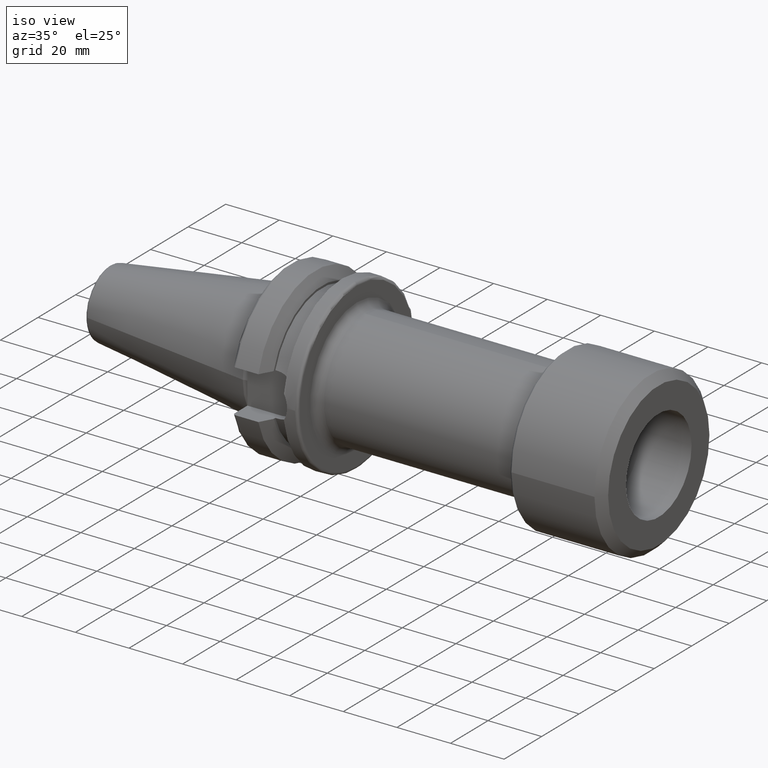
[diagram: clean part render]
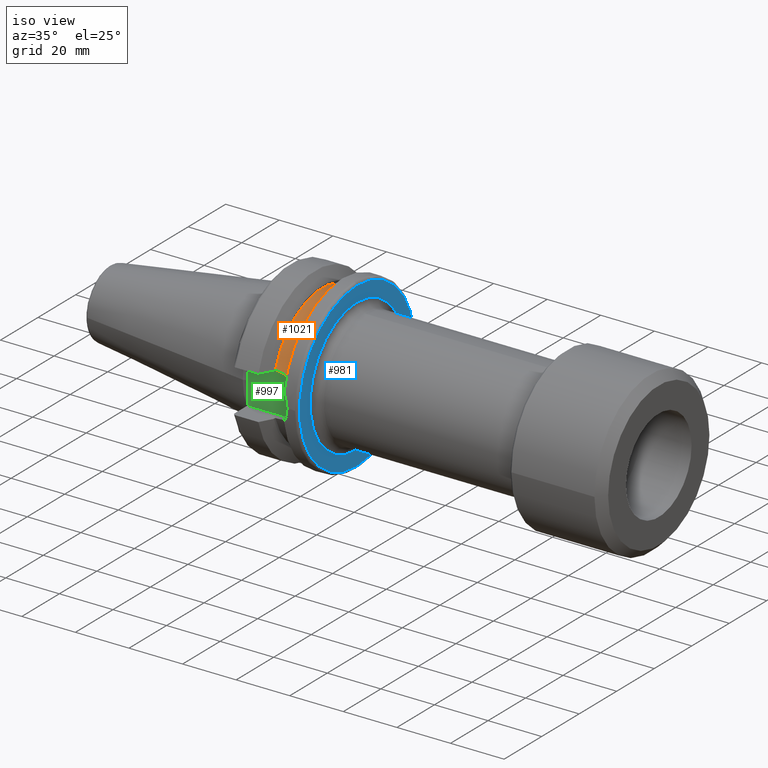
[diagram: same view with three faces highlighted in distinct colors, each labeled with its STEP entity id]
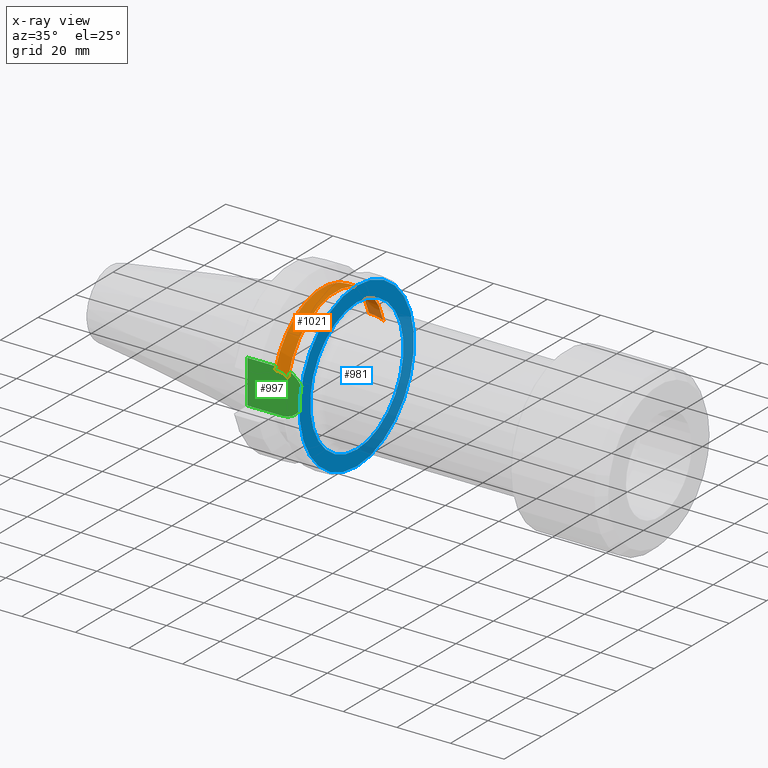
[diagram: x-ray of the same camera — body ghosted, the three highlighted faces saturated]
A machine part, iso view with three faces highlighted in distinct colors.
The next image is the same camera in x-ray (body ghosted, the three faces saturated) — at least one of them is partly hidden behind the body in this view.
Their STEP definitions:

[orange] entity #1021 — the highlighted cylindrical surface (partial cylindrical patch) has radius 26.3 mm, axis along (1, 0, 0).
#44=B_SPLINE_CURVE_WITH_KNOTS('',3,(#1708,#1709,#1710,#1711,#1712,#1713),
 .UNSPECIFIED.,.F.,.F.,(4,2,4),(0.,0.305409847287967,0.418608358539112),
 .UNSPECIFIED.);
#51=B_SPLINE_CURVE_WITH_KNOTS('',3,(#1850,#1851,#1852,#1853,#1854,#1855),
 .UNSPECIFIED.,.F.,.F.,(4,2,4),(-0.418608358539113,-0.305409847287967,0.),
 .UNSPECIFIED.);
#106=CYLINDRICAL_SURFACE('',#1212,26.3);
#157=FACE_OUTER_BOUND('',#225,.T.);
#225=EDGE_LOOP('',(#894,#895,#896,#897,#898,#899));
#263=LINE('',#1721,#317);
#282=LINE('',#1866,#336);
#317=VECTOR('',#1363,10.);
#336=VECTOR('',#1430,10.);
#408=CIRCLE('',#1211,26.3);
#409=CIRCLE('',#1213,26.3);
#459=VERTEX_POINT('',#1705);
#460=VERTEX_POINT('',#1707);
#463=VERTEX_POINT('',#1720);
#489=VERTEX_POINT('',#1847);
#490=VERTEX_POINT('',#1849);
#492=VERTEX_POINT('',#1865);
#567=EDGE_CURVE('',#460,#459,#44,.T.);
#571=EDGE_CURVE('',#463,#460,#263,.T.);
#610=EDGE_CURVE('',#490,#489,#51,.T.);
#613=EDGE_CURVE('',#489,#492,#282,.T.);
#641=EDGE_CURVE('',#492,#463,#408,.T.);
#642=EDGE_CURVE('',#490,#459,#409,.T.);
#894=ORIENTED_EDGE('',*,*,#567,.T.);
#895=ORIENTED_EDGE('',*,*,#642,.F.);
#896=ORIENTED_EDGE('',*,*,#610,.T.);
#897=ORIENTED_EDGE('',*,*,#613,.T.);
#898=ORIENTED_EDGE('',*,*,#641,.T.);
#899=ORIENTED_EDGE('',*,*,#571,.T.);
#1021=ADVANCED_FACE('',(#157),#106,.T.);
#1211=AXIS2_PLACEMENT_3D('',#1932,#1497,#1498);
#1212=AXIS2_PLACEMENT_3D('',#1933,#1499,#1500);
#1213=AXIS2_PLACEMENT_3D('',#1934,#1501,#1502);
#1363=DIRECTION('',(1.,0.,0.));
#1430=DIRECTION('',(-1.,0.,0.));
#1497=DIRECTION('center_axis',(1.,0.,0.));
#1498=DIRECTION('ref_axis',(0.,0.,-1.));
#1499=DIRECTION('center_axis',(1.,0.,0.));
#1500=DIRECTION('ref_axis',(0.,1.,0.));
#1501=DIRECTION('center_axis',(1.,0.,0.));
#1502=DIRECTION('ref_axis',(0.,0.,-1.));
#1705=CARTESIAN_POINT('',(19.1,-25.3793222919762,6.89782574439221));
#1707=CARTESIAN_POINT('',(14.95,-25.0377215417058,8.05));
#1708=CARTESIAN_POINT('Ctrl Pts',(14.95,-25.0377215417058,8.05));
#1709=CARTESIAN_POINT('Ctrl Pts',(15.9680328242932,-25.0377215417058,8.05));
#1710=CARTESIAN_POINT('Ctrl Pts',(17.0490724969254,-25.1063150193149,7.84520188991776));
#1711=CARTESIAN_POINT('Ctrl Pts',(18.4068260684762,-25.2726009715968,7.28086186600679));
#1712=CARTESIAN_POINT('Ctrl Pts',(18.7623374744972,-25.3241080721198,7.10097664045187));
#1713=CARTESIAN_POINT('Ctrl Pts',(19.1,-25.3793222919762,6.89782574439221));
#1720=CARTESIAN_POINT('',(14.1,-25.0377215417058,8.05));
#1721=CARTESIAN_POINT('',(16.6,-25.0377215417058,8.05));
#1847=CARTESIAN_POINT('',(14.95,25.0377215417058,8.05));
#1849=CARTESIAN_POINT('',(19.1,25.3793222919762,6.89782574439221));
#1850=CARTESIAN_POINT('Ctrl Pts',(19.1,25.3793222919762,6.89782574439221));
#1851=CARTESIAN_POINT('Ctrl Pts',(18.7623374744972,25.3241080721198,7.10097664045187));
#1852=CARTESIAN_POINT('Ctrl Pts',(18.4068260684762,25.2726009715968,7.28086186600679));
#1853=CARTESIAN_POINT('Ctrl Pts',(17.0490724969254,25.1063150193149,7.84520188991776));
#1854=CARTESIAN_POINT('Ctrl Pts',(15.9680328242932,25.0377215417058,8.05));
#1855=CARTESIAN_POINT('Ctrl Pts',(14.95,25.0377215417058,8.05));
#1865=CARTESIAN_POINT('',(14.1,25.0377215417058,8.05));
#1866=CARTESIAN_POINT('',(16.6,25.0377215417058,8.05));
#1932=CARTESIAN_POINT('Origin',(14.1,0.,0.));
#1933=CARTESIAN_POINT('Origin',(16.6,0.,0.));
#1934=CARTESIAN_POINT('Origin',(19.1,0.,0.));

[blue] entity #981 — the highlighted planar face has unit normal (1, 0, 0).
#62=FACE_BOUND('',#181,.T.);
#73=PLANE('',#1128);
#117=FACE_OUTER_BOUND('',#180,.T.);
#180=EDGE_LOOP('',(#692));
#181=EDGE_LOOP('',(#693));
#364=CIRCLE('',#1126,24.85);
#365=CIRCLE('',#1129,30.5);
#436=VERTEX_POINT('',#1609);
#437=VERTEX_POINT('',#1615);
#534=EDGE_CURVE('',#436,#436,#364,.T.);
#536=EDGE_CURVE('',#437,#437,#365,.T.);
#692=ORIENTED_EDGE('',*,*,#536,.T.);
#693=ORIENTED_EDGE('',*,*,#534,.F.);
#981=ADVANCED_FACE('',(#117,#62),#73,.T.);
#1126=AXIS2_PLACEMENT_3D('',#1611,#1283,#1284);
#1128=AXIS2_PLACEMENT_3D('',#1614,#1288,#1289);
#1129=AXIS2_PLACEMENT_3D('',#1616,#1290,#1291);
#1283=DIRECTION('center_axis',(1.,0.,0.));
#1284=DIRECTION('ref_axis',(0.,-1.22464679914735E-16,1.));
#1288=DIRECTION('center_axis',(1.,0.,0.));
#1289=DIRECTION('ref_axis',(0.,0.,-1.));
#1290=DIRECTION('center_axis',(1.,0.,0.));
#1291=DIRECTION('ref_axis',(0.,0.,-1.));
#1609=CARTESIAN_POINT('',(27.,6.08649459176235E-15,-24.85));
#1611=CARTESIAN_POINT('Origin',(27.,0.,0.));
#1614=CARTESIAN_POINT('Origin',(27.,0.,0.));
#1615=CARTESIAN_POINT('',(27.,-3.73517273739943E-15,30.5));
#1616=CARTESIAN_POINT('Origin',(27.,0.,0.));

[green] entity #997 — the highlighted planar face has unit normal (0, 1, 0).
#79=PLANE('',#1160);
#133=FACE_OUTER_BOUND('',#200,.T.);
#200=EDGE_LOOP('',(#768,#769,#770,#771));
#267=LINE('',#1743,#321);
#269=LINE('',#1748,#323);
#273=LINE('',#1770,#327);
#321=VECTOR('',#1367,10.);
#323=VECTOR('',#1371,10.);
#327=VECTOR('',#1377,10.);
#380=CIRCLE('',#1157,8.05);
#461=VERTEX_POINT('',#1714);
#462=VERTEX_POINT('',#1716);
#468=VERTEX_POINT('',#1741);
#470=VERTEX_POINT('',#1747);
#569=EDGE_CURVE('',#461,#462,#380,.T.);
#577=EDGE_CURVE('',#468,#461,#267,.T.);
#579=EDGE_CURVE('',#462,#470,#269,.T.);
#585=EDGE_CURVE('',#470,#468,#273,.T.);
#768=ORIENTED_EDGE('',*,*,#579,.F.);
#769=ORIENTED_EDGE('',*,*,#569,.F.);
#770=ORIENTED_EDGE('',*,*,#577,.F.);
#771=ORIENTED_EDGE('',*,*,#585,.F.);
#997=ADVANCED_FACE('',(#133),#79,.F.);
#1157=AXIS2_PLACEMENT_3D('',#1717,#1358,#1359);
#1160=AXIS2_PLACEMENT_3D('',#1769,#1375,#1376);
#1358=DIRECTION('center_axis',(0.,1.,0.));
#1359=DIRECTION('ref_axis',(0.,0.,1.));
#1367=DIRECTION('',(1.,0.,8.57315076930623E-17));
#1371=DIRECTION('',(-1.,0.,-8.57315076930623E-17));
#1375=DIRECTION('center_axis',(0.,1.,0.));
#1376=DIRECTION('ref_axis',(0.,0.,1.));
#1377=DIRECTION('',(0.,0.,1.));
#1714=CARTESIAN_POINT('',(14.95,-22.6,8.05));
#1716=CARTESIAN_POINT('',(14.95,-22.6,-8.05));
#1717=CARTESIAN_POINT('Origin',(14.95,-22.6,0.));
#1741=CARTESIAN_POINT('',(1.99999999999999,-22.6,8.05));
#1743=CARTESIAN_POINT('',(1.99999999999999,-22.6,8.05));
#1747=CARTESIAN_POINT('',(1.99999999999999,-22.6,-8.05));
#1748=CARTESIAN_POINT('',(14.95,-22.6,-8.05));
#1769=CARTESIAN_POINT('Origin',(12.5,-22.6,0.));
#1770=CARTESIAN_POINT('',(1.99999999999999,-22.6,0.));